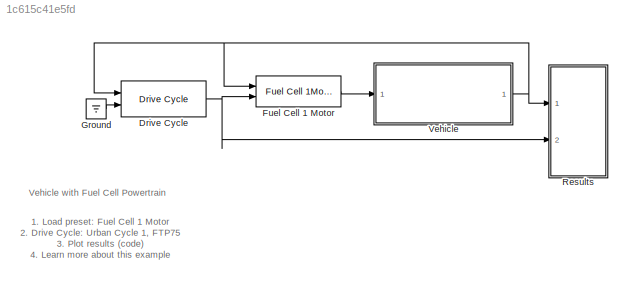
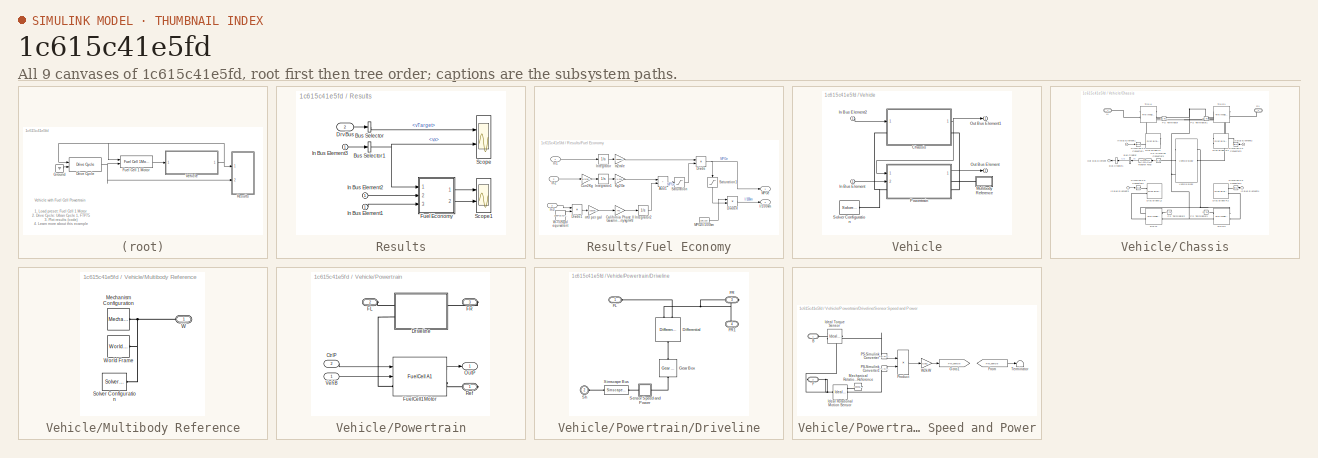
[diagram: thumbnail index - all 9 canvases of the model, root first then tree order]
MODEL slx_1c615c41e5fd
KIND model
CONFIG AbsTol = auto
CONFIG EnableMultiTasking = off
CONFIG FixedStep = auto
CONFIG InitFcn = Vehicle = sm_car_vehcfg_checkConfig(Vehicle);
CONFIG MaxStep = auto
CONFIG MinStep = auto
CONFIG RelTol = 1e-3
CONFIG SampleTimeConstraint = Unconstrained
CONFIG SolverName = VariableStepAuto
CONFIG StartTime = 0.0
CONFIG StopTime = 10e6
BLOCK [Reference] Drive Cycle  REF=Driver_Drive_Cycle/Drive Cycle
  Ports = [2, 1]
  SourceBlock = Driver_Drive_Cycle/Drive Cycle
  SourceType = SubSystem
BLOCK [Reference] Fuel Cell 1 Motor  REF=Control_FuelCell1Motor/Fuel Cell 1Motor Control
  Ports = [2, 1]
  SourceBlock = Control_FuelCell1Motor/Fuel Cell 1Motor Control
  SourceType = Control of Fuel Cell Powertrain
BLOCK [Ground] Ground
BLOCK [SubSystem] Results
  Ports = [2]
  RequestExecContextInheritance = off
BLOCK [BusSelector] Results/Bus Selector
  OutputSignals = Reference.vTarget
  Ports = [1, 1]
BLOCK [BusSelector] Results/Bus Selector1
  OutputSignals = Chassis.Body.CG.vx
  Ports = [1, 1]
BLOCK [Inport] Results/DrvBus
  Port = 2
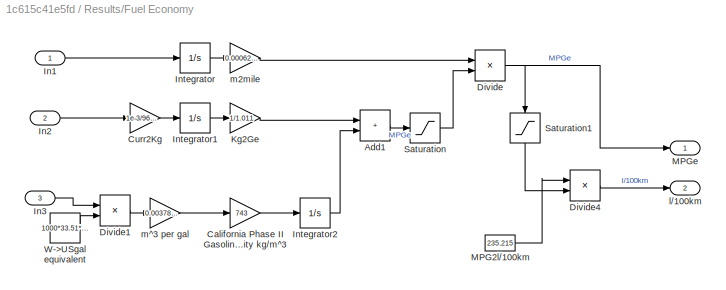
BLOCK [SubSystem] Results/Fuel Economy
  Ports = [3, 2]
  RequestExecContextInheritance = off
BLOCK [Sum] Results/Fuel Economy/Add1
  IconShape = rectangular
  Ports = [2, 1]
BLOCK [Gain] Results/Fuel Economy/California Phase II Gasoline density kg//m^3
  Gain = 743
BLOCK [Gain] Results/Fuel Economy/Curr2Kg
  Gain = 1e-3/96485.332*400
BLOCK [Product] Results/Fuel Economy/Divide
  Inputs = */
  Ports = [2, 1]
BLOCK [Product] Results/Fuel Economy/Divide1
  Inputs = */
  Ports = [2, 1]
BLOCK [Product] Results/Fuel Economy/Divide4
  Inputs = */
  Ports = [2, 1]
BLOCK [Inport] Results/Fuel Economy/In1
BLOCK [Inport] Results/Fuel Economy/In2
  Port = 2
BLOCK [Inport] Results/Fuel Economy/In3
  Port = 3
BLOCK [Integrator] Results/Fuel Economy/Integrator
  Ports = [1, 1]
BLOCK [Integrator] Results/Fuel Economy/Integrator1
  Ports = [1, 1]
BLOCK [Integrator] Results/Fuel Economy/Integrator2
  Ports = [1, 1]
BLOCK [Gain] Results/Fuel Economy/Kg2Ge
  Gain = 1/1.011
BLOCK [Constant] Results/Fuel Economy/MPG2l//100km
  Value = 235.215
BLOCK [Outport] Results/Fuel Economy/MPGe
  VectorParamsAs1DForOutWhenUnconnected = off
BLOCK [Saturate] Results/Fuel Economy/Saturation
  LowerLimit = 0.0001
  UpperLimit = inf
BLOCK [Saturate] Results/Fuel Economy/Saturation1
  LowerLimit = 10
  NameLocation = left
  UpperLimit = inf
BLOCK [Constant] Results/Fuel Economy/W->USgal equivalent
  Value = 1000*33.51*3600
BLOCK [Outport] Results/Fuel Economy/l//100km
  Port = 2
  VectorParamsAs1DForOutWhenUnconnected = off
BLOCK [Gain] Results/Fuel Economy/m2mile
  Gain = 0.000621371
BLOCK [Gain] Results/Fuel Economy/m^3 per gal
  Gain = 0.00378541
BLOCK [Inport] Results/In Bus Element1
BLOCK [Inport] Results/In Bus Element2
BLOCK [Inport] Results/In Bus Element3
BLOCK [Scope] Results/Scope
  Floating = off
  NumInputPorts = 2
  Ports = [2]
  ScopeSpecificationString = Simulink.scopes.TimeScopeBlockCfg('CurrentConfiguration', extmgr.ConfigurationSet(extmgr.Configuration('Core','General UI',true),extmgr.Configuration('Core','Source UI',true),extmgr.Configuration('Sources','WiredSimulink',true,'DataLoggingVariableName','ScopeData1'),extmgr.Configuration('Visuals','Time Domain',true,'SerializedDisplays',{struct('MinYLimReal','-3.42768','MaxYLimReal','28.54488','YLa...<+1438ch>
BLOCK [Scope] Results/Scope1
  Floating = off
  NumInputPorts = 2
  Ports = [2]
  ScopeSpecificationString = Simulink.scopes.TimeScopeBlockCfg('CurrentConfiguration', extmgr.ConfigurationSet(extmgr.Configuration('Core','General UI',true),extmgr.Configuration('Core','Source UI',true),extmgr.Configuration('Sources','WiredSimulink',true,'DataLoggingVariableName','ScopeData2'),extmgr.Configuration('Visuals','Time Domain',true,'SerializedDisplays',{struct('MinYLimReal','-12.71615','MaxYLimReal','114.44535','Y...<+2075ch>
BLOCK [SubSystem] Vehicle
  Ports = [1, 1]
  RequestExecContextInheritance = off
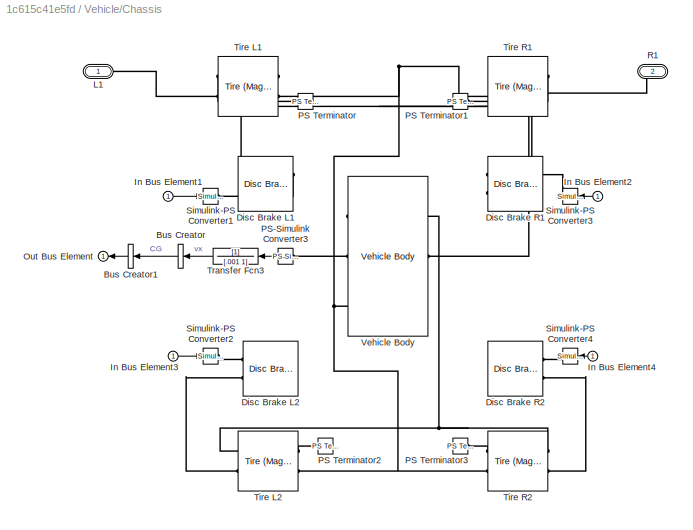
BLOCK [SubSystem] Vehicle/Chassis
  Ports = [1, 1, 0, 0, 0, 1, 1]
  RequestExecContextInheritance = off
  VariantControl = Full
BLOCK [BusCreator] Vehicle/Chassis/Bus Creator
  DisplayOption = bar
  InheritFromInputs = on
  Inputs = 1
  Ports = [1, 1]
BLOCK [BusCreator] Vehicle/Chassis/Bus Creator1
  DisplayOption = bar
  InheritFromInputs = on
  Inputs = 1
  Ports = [1, 1]
BLOCK [Reference] Vehicle/Chassis/Disc Brake L1  REF=sdl_lib/Brakes & Detents/Rotational/Disc Brake
  Ports = [0, 0, 0, 0, 0, 2]
  SourceBlock = sdl_lib/Brakes & Detents/Rotational/Disc Brake
  SourceProductBaseCode = LD
  SourceType = Disc Brake
BLOCK [Reference] Vehicle/Chassis/Disc Brake L2  REF=sdl_lib/Brakes & Detents/Rotational/Disc Brake
  NameLocation = top
  Ports = [0, 0, 0, 0, 0, 2]
  SourceBlock = sdl_lib/Brakes & Detents/Rotational/Disc Brake
  SourceProductBaseCode = LD
  SourceType = Disc Brake
BLOCK [Reference] Vehicle/Chassis/Disc Brake R1  REF=sdl_lib/Brakes & Detents/Rotational/Disc Brake
  Ports = [0, 0, 0, 0, 0, 2]
  SourceBlock = sdl_lib/Brakes & Detents/Rotational/Disc Brake
  SourceProductBaseCode = LD
  SourceType = Disc Brake
BLOCK [Reference] Vehicle/Chassis/Disc Brake R2  REF=sdl_lib/Brakes & Detents/Rotational/Disc Brake
  NameLocation = top
  Ports = [0, 0, 0, 0, 0, 2]
  SourceBlock = sdl_lib/Brakes & Detents/Rotational/Disc Brake
  SourceProductBaseCode = LD
  SourceType = Disc Brake
BLOCK [Inport] Vehicle/Chassis/In Bus Element1
BLOCK [Inport] Vehicle/Chassis/In Bus Element2
BLOCK [Inport] Vehicle/Chassis/In Bus Element3
BLOCK [Inport] Vehicle/Chassis/In Bus Element4
BLOCK [PMIOPort] Vehicle/Chassis/L1
  Side = Left
BLOCK [Outport] Vehicle/Chassis/Out Bus Element
BLOCK [Reference] Vehicle/Chassis/PS Terminator  REF=fl_lib/Physical Signals/Sinks/PS Terminator
  Ports = [0, 0, 0, 0, 0, 1]
  SourceBlock = fl_lib/Physical Signals/Sinks/PS Terminator
  SourceProductBaseCode = PW,SS,VE
  SourceType = PS Terminator
BLOCK [Reference] Vehicle/Chassis/PS Terminator1  REF=fl_lib/Physical Signals/Sinks/PS Terminator
  Ports = [0, 0, 0, 0, 0, 1]
  SourceBlock = fl_lib/Physical Signals/Sinks/PS Terminator
  SourceProductBaseCode = PW,SS,VE
  SourceType = PS Terminator
BLOCK [Reference] Vehicle/Chassis/PS Terminator2  REF=fl_lib/Physical Signals/Sinks/PS Terminator
  Ports = [0, 0, 0, 0, 0, 1]
  SourceBlock = fl_lib/Physical Signals/Sinks/PS Terminator
  SourceProductBaseCode = PW,SS,VE
  SourceType = PS Terminator
BLOCK [Reference] Vehicle/Chassis/PS Terminator3  REF=fl_lib/Physical Signals/Sinks/PS Terminator
  Ports = [0, 0, 0, 0, 0, 1]
  SourceBlock = fl_lib/Physical Signals/Sinks/PS Terminator
  SourceProductBaseCode = PW,SS,VE
  SourceType = PS Terminator
BLOCK [Reference] Vehicle/Chassis/PS-Simulink Converter3  REF=nesl_utility/PS-Simulink
Converter
  NameLocation = top
  Ports = [0, 1, 0, 0, 0, 1]
  SourceBlock = nesl_utility/PS-Simulink\nConverter
  SourceProductBaseCode = SS,PW,VE
  SourceType = PS-Simulink\nConverter
BLOCK [PMIOPort] Vehicle/Chassis/R1
  Port = 2
  Side = Right
BLOCK [Reference] Vehicle/Chassis/Simulink-PS Converter1  REF=nesl_utility/Simulink-PS
Converter
  Ports = [1, 0, 0, 0, 0, 0, 1]
  SourceBlock = nesl_utility/Simulink-PS\nConverter
  SourceProductBaseCode = SS,PW,VE
  SourceType = Simulink-PS\nConverter
BLOCK [Reference] Vehicle/Chassis/Simulink-PS Converter2  REF=nesl_utility/Simulink-PS
Converter
  Ports = [1, 0, 0, 0, 0, 0, 1]
  SourceBlock = nesl_utility/Simulink-PS\nConverter
  SourceProductBaseCode = SS,PW,VE
  SourceType = Simulink-PS\nConverter
BLOCK [Reference] Vehicle/Chassis/Simulink-PS Converter3  REF=nesl_utility/Simulink-PS
Converter
  Ports = [1, 0, 0, 0, 0, 0, 1]
  SourceBlock = nesl_utility/Simulink-PS\nConverter
  SourceProductBaseCode = SS,PW,VE
  SourceType = Simulink-PS\nConverter
BLOCK [Reference] Vehicle/Chassis/Simulink-PS Converter4  REF=nesl_utility/Simulink-PS
Converter
  Ports = [1, 0, 0, 0, 0, 0, 1]
  SourceBlock = nesl_utility/Simulink-PS\nConverter
  SourceProductBaseCode = SS,PW,VE
  SourceType = Simulink-PS\nConverter
BLOCK [Reference] Vehicle/Chassis/Tire L1  REF=sdl_lib/Tires & Vehicles/Tire (Magic Formula)
  NameLocation = top
  Ports = [0, 0, 0, 0, 0, 2, 2]
  SourceBlock = sdl_lib/Tires & Vehicles/Tire (Magic Formula)
  SourceProductBaseCode = LD
  SourceType = Tire (Magic Formula)
BLOCK [Reference] Vehicle/Chassis/Tire L2  REF=sdl_lib/Tires & Vehicles/Tire (Magic Formula)
  Ports = [0, 0, 0, 0, 0, 2, 2]
  SourceBlock = sdl_lib/Tires & Vehicles/Tire (Magic Formula)
  SourceProductBaseCode = LD
  SourceType = Tire (Magic Formula)
BLOCK [Reference] Vehicle/Chassis/Tire R1  REF=sdl_lib/Tires & Vehicles/Tire (Magic Formula)
  NameLocation = top
  Ports = [0, 0, 0, 0, 0, 2, 2]
  SourceBlock = sdl_lib/Tires & Vehicles/Tire (Magic Formula)
  SourceProductBaseCode = LD
  SourceType = Tire (Magic Formula)
BLOCK [Reference] Vehicle/Chassis/Tire R2  REF=sdl_lib/Tires & Vehicles/Tire (Magic Formula)
  Ports = [0, 0, 0, 0, 0, 2, 2]
  SourceBlock = sdl_lib/Tires & Vehicles/Tire (Magic Formula)
  SourceProductBaseCode = LD
  SourceType = Tire (Magic Formula)
BLOCK [TransferFcn] Vehicle/Chassis/Transfer Fcn3
  Denominator = [.001 1]
BLOCK [Reference] Vehicle/Chassis/Vehicle Body  REF=sdl_lib/Tires & Vehicles/Vehicle Body
  Ports = [0, 0, 0, 0, 0, 3, 3]
  SourceBlock = sdl_lib/Tires & Vehicles/Vehicle Body
  SourceProductBaseCode = LD
  SourceType = Vehicle Body
BLOCK [Inport] Vehicle/In Bus Element
BLOCK [Inport] Vehicle/In Bus Element2
BLOCK [SubSystem] Vehicle/Multibody Reference
  Ports = [0, 0, 0, 0, 0, 0, 1]
  RequestExecContextInheritance = off
BLOCK [Reference] Vehicle/Multibody Reference/Mechanism Configuration  REF=sm_lib/Utilities/Mechanism
Configuration
  Ports = [0, 0, 0, 0, 0, 0, 1]
  SourceBlock = sm_lib/Utilities/Mechanism\nConfiguration
  SourceProductBaseCode = MS
  SourceType = Mechanism\nConfiguration
BLOCK [Reference] Vehicle/Multibody Reference/Solver Configuration  REF=nesl_utility/Solver
Configuration
  Ports = [0, 0, 0, 0, 0, 0, 1]
  SourceBlock = nesl_utility/Solver\nConfiguration
  SourceProductBaseCode = SS,PW,VE
  SourceType = Solver\nConfiguration
BLOCK [PMIOPort] Vehicle/Multibody Reference/W
  Side = Right
BLOCK [Reference] Vehicle/Multibody Reference/World Frame  REF=sm_lib/Frames and
Transforms/World Frame
  Ports = [0, 0, 0, 0, 0, 0, 1]
  SourceBlock = sm_lib/Frames and\nTransforms/World Frame
  SourceProductBaseCode = MS
  SourceType = World Frame
BLOCK [Outport] Vehicle/Out Bus Element
BLOCK [Outport] Vehicle/Out Bus Element1
BLOCK [SubSystem] Vehicle/Powertrain
  Ports = [2, 1, 0, 0, 0, 1, 2]
  RequestExecContextInheritance = off
BLOCK [Inport] Vehicle/Powertrain/CtrlP
  NameLocation = top
  Port = 2
BLOCK [SubSystem] Vehicle/Powertrain/Driveline
  Ports = [0, 0, 0, 0, 0, 2, 2]
  RequestExecContextInheritance = off
BLOCK [Reference] Vehicle/Powertrain/Driveline/Differential  REF=sdl_lib/Gears/Differential
  NameLocation = right
  Ports = [0, 0, 0, 0, 0, 1, 2]
  SourceBlock = sdl_lib/Gears/Differential
  SourceProductBaseCode = LD
  SourceType = Differential
BLOCK [PMIOPort] Vehicle/Powertrain/Driveline/FL
  Side = Left
BLOCK [PMIOPort] Vehicle/Powertrain/Driveline/FR
  Port = 3
  Side = Right
BLOCK [PMIOPort] Vehicle/Powertrain/Driveline/FR1
  Port = 4
  Side = Right
BLOCK [Reference] Vehicle/Powertrain/Driveline/Gear Box  REF=fl_lib/Mechanical/Mechanisms/Gear Box
  NameLocation = right
  Ports = [0, 0, 0, 0, 0, 1, 1]
  SourceBlock = fl_lib/Mechanical/Mechanisms/Gear Box
  SourceProductBaseCode = PW,SS,VE
  SourceType = Gear Box
BLOCK [SubSystem] Vehicle/Powertrain/Driveline/Sensor Speed and Power
  Ports = [0, 0, 0, 0, 0, 1, 1]
  RequestExecContextInheritance = off
BLOCK [PMIOPort] Vehicle/Powertrain/Driveline/Sensor Speed and Power/B
  NameLocation = top
  Side = Left
BLOCK [PMIOPort] Vehicle/Powertrain/Driveline/Sensor Speed and Power/F
  NameLocation = top
  Port = 2
  Side = Right
BLOCK [From] Vehicle/Powertrain/Driveline/Sensor Speed and Power/From
  GotoTag = Pm_vehicle
BLOCK [Goto] Vehicle/Powertrain/Driveline/Sensor Speed and Power/Goto1
  GotoTag = Pm_vehicle
BLOCK [Reference] Vehicle/Powertrain/Driveline/Sensor Speed and Power/Ideal Rotational Motion Sensor  REF=fl_lib/Mechanical/Mechanical Sensors/Ideal Rotational
Motion Sensor
  Ports = [0, 0, 0, 0, 0, 1, 3]
  SourceBlock = fl_lib/Mechanical/Mechanical Sensors/Ideal Rotational\nMotion Sensor
  SourceProductBaseCode = PW,SS,VE
  SourceType = Ideal Rotational\nMotion Sensor
BLOCK [Reference] Vehicle/Powertrain/Driveline/Sensor Speed and Power/Ideal Torque Sensor  REF=fl_lib/Mechanical/Mechanical Sensors/Ideal Torque Sensor
  Ports = [0, 0, 0, 0, 0, 1, 2]
  SourceBlock = fl_lib/Mechanical/Mechanical Sensors/Ideal Torque Sensor
  SourceProductBaseCode = PW,SS,VE
  SourceType = Ideal Torque Sensor
BLOCK [Reference] Vehicle/Powertrain/Driveline/Sensor Speed and Power/Mechanical Rotational Reference  REF=fl_lib/Mechanical/Rotational Elements/Mechanical
Rotational Reference
  NameLocation = top
  Ports = [0, 0, 0, 0, 0, 1]
  SourceBlock = fl_lib/Mechanical/Rotational Elements/Mechanical\nRotational Reference
  SourceProductBaseCode = PW,SS,VE
  SourceType = Mechanical\nRotational Reference
BLOCK [Reference] Vehicle/Powertrain/Driveline/Sensor Speed and Power/PS-Simulink Converter  REF=nesl_utility/PS-Simulink
Converter
  Ports = [0, 1, 0, 0, 0, 1]
  SourceBlock = nesl_utility/PS-Simulink\nConverter
  SourceProductBaseCode = SS,PW,VE
  SourceType = PS-Simulink\nConverter
BLOCK [Reference] Vehicle/Powertrain/Driveline/Sensor Speed and Power/PS-Simulink Converter1  REF=nesl_utility/PS-Simulink
Converter
  Ports = [0, 1, 0, 0, 0, 1]
  SourceBlock = nesl_utility/PS-Simulink\nConverter
  SourceProductBaseCode = SS,PW,VE
  SourceType = PS-Simulink\nConverter
BLOCK [Product] Vehicle/Powertrain/Driveline/Sensor Speed and Power/Product
  Ports = [2, 1]
  RndMeth = Zero
BLOCK [Terminator] Vehicle/Powertrain/Driveline/Sensor Speed and Power/Terminator
BLOCK [Gain] Vehicle/Powertrain/Driveline/Sensor Speed and Power/W2kW
  Gain = 0.001
BLOCK [PMIOPort] Vehicle/Powertrain/Driveline/Sh
  Port = 2
  Side = Left
BLOCK [SimscapeBus] Vehicle/Powertrain/Driveline/Simscape Bus
  HierarchyStrings = ShaftA1
  Ports = [0, 0, 0, 0, 0, 1, 1]
BLOCK [PMIOPort] Vehicle/Powertrain/FL
  Port = 2
  Side = Left
BLOCK [PMIOPort] Vehicle/Powertrain/FR
  Port = 3
  Side = Right
BLOCK [Reference] Vehicle/Powertrain/FuelCell1Motor  REF=Power_Shaft1_FuelCell_A1/FuelCell A1
  Ports = [2, 1, 0, 0, 0, 1, 1]
  SourceBlock = Power_Shaft1_FuelCell_A1/FuelCell A1
  SourceType = Single Motor Fuel Cell Powertrain
BLOCK [Outport] Vehicle/Powertrain/OutP
  VectorParamsAs1DForOutWhenUnconnected = off
BLOCK [PMIOPort] Vehicle/Powertrain/Ref
  Side = Right
BLOCK [Inport] Vehicle/Powertrain/VehB
BLOCK [Reference] Vehicle/Solver Configuration  REF=nesl_utility/Solver
Configuration
  Ports = [0, 0, 0, 0, 0, 0, 1]
  SourceBlock = nesl_utility/Solver\nConfiguration
  SourceProductBaseCode = SS,PW,VE
  SourceType = Solver\nConfiguration
ANNOTATION (root): 1. Load preset: Fuel Cell 1 Motor 2. Drive Cycle: Urban Cycle 1 , FTP75 3. Plot results ( code ) 4. Learn more about this example
ANNOTATION (root): Vehicle with Fuel Cell Powertrain
NET Drive Cycle:1 -> Fuel Cell 1 Motor:2, Results:2
LINE Fuel Cell 1 Motor:1 -> Vehicle:1
LINE Ground:1 -> Drive Cycle:2
NET Results/Bus Selector1:1 -> Results/Fuel Economy:1, Results/Scope:2
LINE Results/Bus Selector:1 -> Results/Scope:1
LINE Results/DrvBus:1 -> Results/Bus Selector:1
LINE Results/Fuel Economy/Add1:1 -> Results/Fuel Economy/Saturation:1
LINE Results/Fuel Economy/California Phase II Gasoline density kg//m^3:1 -> Results/Fuel Economy/Integrator2:1
LINE Results/Fuel Economy/Curr2Kg:1 -> Results/Fuel Economy/Integrator1:1
LINE Results/Fuel Economy/Divide1:1 -> Results/Fuel Economy/m^3 per gal:1
LINE Results/Fuel Economy/Divide4:1 -> Results/Fuel Economy/l//100km:1
NET Results/Fuel Economy/Divide:1 -> Results/Fuel Economy/MPGe:1, Results/Fuel Economy/Saturation1:1
LINE Results/Fuel Economy/In1:1 -> Results/Fuel Economy/Integrator:1
LINE Results/Fuel Economy/In2:1 -> Results/Fuel Economy/Curr2Kg:1
LINE Results/Fuel Economy/In3:1 -> Results/Fuel Economy/Divide1:1
LINE Results/Fuel Economy/Integrator1:1 -> Results/Fuel Economy/Kg2Ge:1
LINE Results/Fuel Economy/Integrator2:1 -> Results/Fuel Economy/Add1:2
LINE Results/Fuel Economy/Integrator:1 -> Results/Fuel Economy/m2mile:1
LINE Results/Fuel Economy/Kg2Ge:1 -> Results/Fuel Economy/Add1:1
LINE Results/Fuel Economy/MPG2l//100km:1 -> Results/Fuel Economy/Divide4:1
LINE Results/Fuel Economy/Saturation1:1 -> Results/Fuel Economy/Divide4:2
LINE Results/Fuel Economy/Saturation:1 -> Results/Fuel Economy/Divide:2
LINE Results/Fuel Economy/W->USgal equivalent:1 -> Results/Fuel Economy/Divide1:2
LINE Results/Fuel Economy/m2mile:1 -> Results/Fuel Economy/Divide:1
LINE Results/Fuel Economy/m^3 per gal:1 -> Results/Fuel Economy/California Phase II Gasoline density kg//m^3:1
LINE Results/Fuel Economy:1 -> Results/Scope1:1
LINE Results/Fuel Economy:2 -> Results/Scope1:2
LINE Results/In Bus Element1:1 -> Results/Fuel Economy:3
LINE Results/In Bus Element2:1 -> Results/Fuel Economy:2
LINE Results/In Bus Element3:1 -> Results/Bus Selector1:1
LINE Vehicle/Chassis/Bus Creator1:1 -> Vehicle/Chassis/Out Bus Element:1
LINE Vehicle/Chassis/Bus Creator:1 -> Vehicle/Chassis/Bus Creator1:1
LINE Vehicle/Chassis/In Bus Element1:1 -> Vehicle/Chassis/Simulink-PS Converter1:1
LINE Vehicle/Chassis/In Bus Element2:1 -> Vehicle/Chassis/Simulink-PS Converter3:1
LINE Vehicle/Chassis/In Bus Element3:1 -> Vehicle/Chassis/Simulink-PS Converter2:1
LINE Vehicle/Chassis/In Bus Element4:1 -> Vehicle/Chassis/Simulink-PS Converter4:1
LINE Vehicle/Chassis/PS-Simulink Converter3:1 -> Vehicle/Chassis/Transfer Fcn3:1
LINE Vehicle/Chassis/Transfer Fcn3:1 -> Vehicle/Chassis/Bus Creator:1
NET Vehicle/Chassis:1 -> Vehicle/Out Bus Element1:1, Vehicle/Powertrain:1
LINE Vehicle/In Bus Element2:1 -> Vehicle/Chassis:1
LINE Vehicle/In Bus Element:1 -> Vehicle/Powertrain:2
LINE Vehicle/Powertrain/CtrlP:1 -> Vehicle/Powertrain/FuelCell1Motor:1
LINE Vehicle/Powertrain/Driveline/Sensor Speed and Power/From:1 -> Vehicle/Powertrain/Driveline/Sensor Speed and Power/Terminator:1
LINE Vehicle/Powertrain/Driveline/Sensor Speed and Power/PS-Simulink Converter1:1 -> Vehicle/Powertrain/Driveline/Sensor Speed and Power/Product:2
LINE Vehicle/Powertrain/Driveline/Sensor Speed and Power/PS-Simulink Converter:1 -> Vehicle/Powertrain/Driveline/Sensor Speed and Power/Product:1
LINE Vehicle/Powertrain/Driveline/Sensor Speed and Power/Product:1 -> Vehicle/Powertrain/Driveline/Sensor Speed and Power/W2kW:1
LINE Vehicle/Powertrain/Driveline/Sensor Speed and Power/W2kW:1 -> Vehicle/Powertrain/Driveline/Sensor Speed and Power/Goto1:1
LINE Vehicle/Powertrain/FuelCell1Motor:1 -> Vehicle/Powertrain/OutP:1
LINE Vehicle/Powertrain/VehB:1 -> Vehicle/Powertrain/FuelCell1Motor:2
LINE Vehicle/Powertrain:1 -> Vehicle/Out Bus Element:1
NET Vehicle:1 -> Drive Cycle:1, Fuel Cell 1 Motor:1, Results:1
PLINE Vehicle/Chassis/Disc Brake L1:LConn1 -- Vehicle/Chassis/Simulink-PS Converter1:RConn1
PNET net1: Vehicle/Chassis/Disc Brake L1:LConn2 -- Vehicle/Chassis/L1:RConn1 -- Vehicle/Chassis/Tire L1:LConn2
PLINE Vehicle/Chassis/Disc Brake L2:LConn1 -- Vehicle/Chassis/Simulink-PS Converter2:RConn1
PLINE Vehicle/Chassis/Disc Brake L2:LConn2 -- Vehicle/Chassis/Tire L2:LConn2
PLINE Vehicle/Chassis/Disc Brake R1:LConn1 -- Vehicle/Chassis/Simulink-PS Converter3:RConn1
PNET net2: Vehicle/Chassis/Disc Brake R1:LConn2 -- Vehicle/Chassis/R1:RConn1 -- Vehicle/Chassis/Tire R1:LConn2
PLINE Vehicle/Chassis/Disc Brake R2:LConn1 -- Vehicle/Chassis/Simulink-PS Converter4:RConn1
PLINE Vehicle/Chassis/Disc Brake R2:LConn2 -- Vehicle/Chassis/Tire R2:LConn2
PLINE Vehicle/Chassis/PS Terminator1:LConn1 -- Vehicle/Chassis/Tire R1:RConn1
PLINE Vehicle/Chassis/PS Terminator2:LConn1 -- Vehicle/Chassis/Tire L2:RConn1
PLINE Vehicle/Chassis/PS Terminator3:LConn1 -- Vehicle/Chassis/Tire R2:RConn1
PLINE Vehicle/Chassis/PS Terminator:LConn1 -- Vehicle/Chassis/Tire L1:RConn1
PLINE Vehicle/Chassis/PS-Simulink Converter3:LConn1 -- Vehicle/Chassis/Vehicle Body:LConn2
PNET net3: Vehicle/Chassis/Tire L1:LConn1 -- Vehicle/Chassis/Tire R1:LConn1 -- Vehicle/Chassis/Vehicle Body:RConn2
PNET net4: Vehicle/Chassis/Tire L1:RConn2 -- Vehicle/Chassis/Tire L2:RConn2 -- Vehicle/Chassis/Tire R1:RConn2 -- Vehicle/Chassis/Tire R2:RConn2 -- Vehicle/Chassis/Vehicle Body:LConn1
PNET net5: Vehicle/Chassis/Tire L2:LConn1 -- Vehicle/Chassis/Tire R2:LConn1 -- Vehicle/Chassis/Vehicle Body:RConn1
PNET net6: Vehicle/Chassis:LConn1 -- Vehicle/Powertrain:LConn1 -- Vehicle/Solver Configuration:RConn1
PLINE Vehicle/Chassis:RConn1 -- Vehicle/Powertrain:RConn2
PNET net7: Vehicle/Multibody Reference/Mechanism Configuration:RConn1 -- Vehicle/Multibody Reference/Solver Configuration:RConn1 -- Vehicle/Multibody Reference/W:RConn1 -- Vehicle/Multibody Reference/World Frame:RConn1
PLINE Vehicle/Multibody Reference:RConn1 -- Vehicle/Powertrain:RConn1
PLINE Vehicle/Powertrain/Driveline/Differential:LConn1 -- Vehicle/Powertrain/Driveline/Gear Box:RConn1
PNET net8: Vehicle/Powertrain/Driveline/Differential:RConn1 -- Vehicle/Powertrain/Driveline/FR1:RConn1 -- Vehicle/Powertrain/Driveline/FR:RConn1
PLINE Vehicle/Powertrain/Driveline/Differential:RConn2 -- Vehicle/Powertrain/Driveline/FL:RConn1
PLINE Vehicle/Powertrain/Driveline/Gear Box:LConn1 -- Vehicle/Powertrain/Driveline/Sensor Speed and Power:RConn1
PLINE Vehicle/Powertrain/Driveline/Sensor Speed and Power/B:RConn1 -- Vehicle/Powertrain/Driveline/Sensor Speed and Power/Ideal Torque Sensor:LConn1
PNET net9: Vehicle/Powertrain/Driveline/Sensor Speed and Power/F:RConn1 -- Vehicle/Powertrain/Driveline/Sensor Speed and Power/Ideal Rotational Motion Sensor:LConn1 -- Vehicle/Powertrain/Driveline/Sensor Speed and Power/Ideal Torque Sensor:RConn1
PLINE Vehicle/Powertrain/Driveline/Sensor Speed and Power/Ideal Rotational Motion Sensor:RConn1 -- Vehicle/Powertrain/Driveline/Sensor Speed and Power/Mechanical Rotational Reference:LConn1
PLINE Vehicle/Powertrain/Driveline/Sensor Speed and Power/Ideal Rotational Motion Sensor:RConn2 -- Vehicle/Powertrain/Driveline/Sensor Speed and Power/PS-Simulink Converter1:LConn1
PLINE Vehicle/Powertrain/Driveline/Sensor Speed and Power/Ideal Torque Sensor:RConn2 -- Vehicle/Powertrain/Driveline/Sensor Speed and Power/PS-Simulink Converter:LConn1
PLINE Vehicle/Powertrain/Driveline/Sensor Speed and Power:LConn1 -- Vehicle/Powertrain/Driveline/Simscape Bus:LConn1
PLINE Vehicle/Powertrain/Driveline/Sh:RConn1 -- Vehicle/Powertrain/Driveline/Simscape Bus:RConn1
PLINE Vehicle/Powertrain/Driveline:LConn1 -- Vehicle/Powertrain/FL:RConn1
PLINE Vehicle/Powertrain/Driveline:LConn2 -- Vehicle/Powertrain/FuelCell1Motor:LConn1
PLINE Vehicle/Powertrain/Driveline:RConn1 -- Vehicle/Powertrain/FR:RConn1
PLINE Vehicle/Powertrain/FuelCell1Motor:RConn1 -- Vehicle/Powertrain/Ref:RConn1
note: NET lines group one-source signal fan-out (src -> all destinations, sorted); 1:1 wires keep LINE; PNET lines group multi-terminal physical nets as a canonical sorted terminal list (undirected conserving connections); 2-terminal nets keep the pairwise PLINE form
